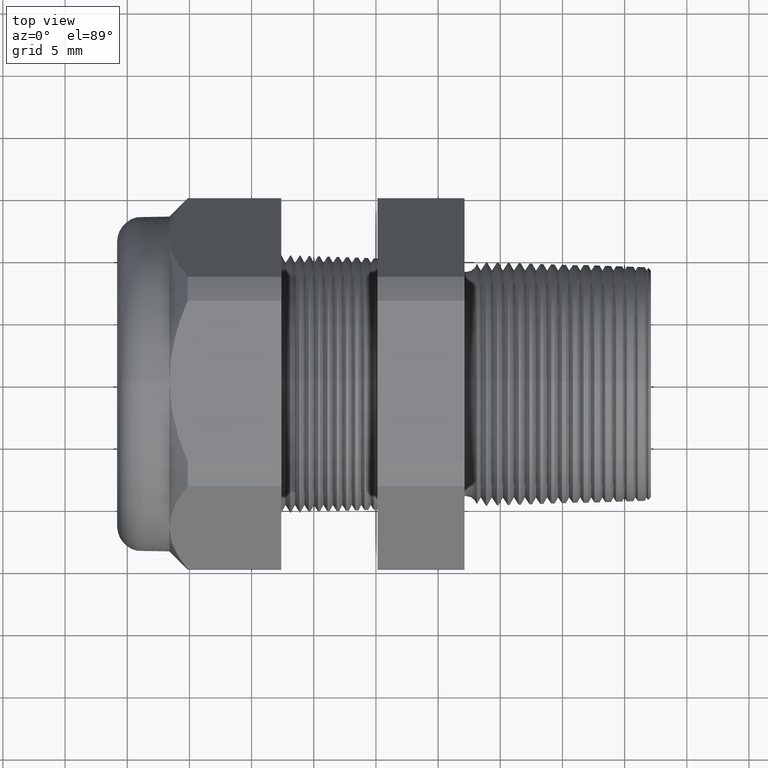
[diagram: clean part render]
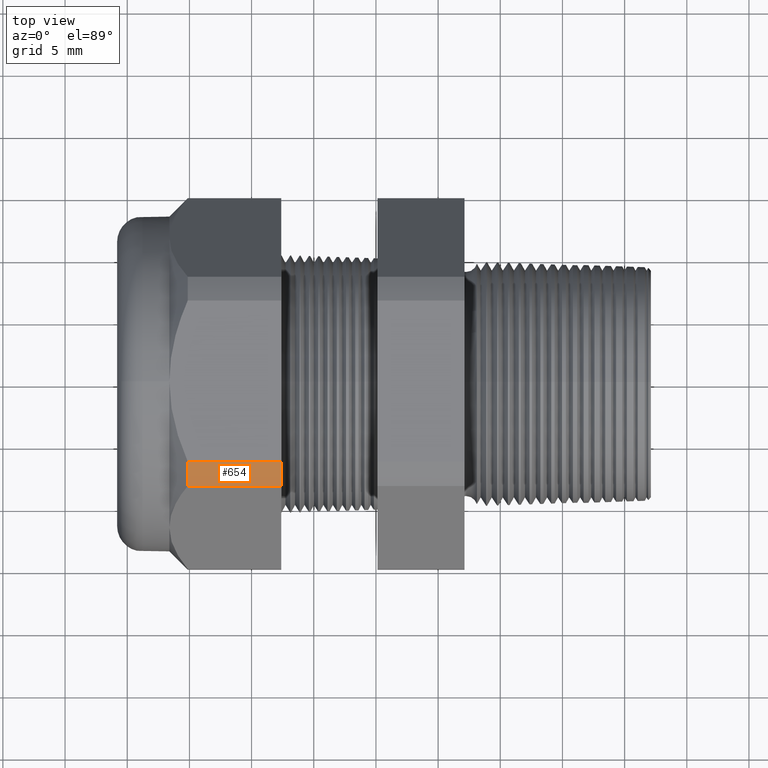
[diagram: same view with one face highlighted and labeled with its STEP entity id]
A machine part, top view. The second image highlights one B-rep face of the part: STEP entity #654.
In plain terms, the highlighted cylindrical surface (partial cylindrical patch) has radius 14.9428 mm, axis along (-1, 0, 0).
Its self-contained STEP definition (entity closure, byte-faithful):
#632 = ORIENTED_EDGE ( 'NONE', *, *, #633, .T. ) ;
#633 = EDGE_CURVE ( 'NONE', #710, #645, #3182, .T. ) ;
#634 = ORIENTED_EDGE ( 'NONE', *, *, #644, .F. ) ;
#635 = ORIENTED_EDGE ( 'NONE', *, *, #636, .F. ) ;
#636 = EDGE_CURVE ( 'NONE', #656, #670, #3170, .T. ) ;
#644 = EDGE_CURVE ( 'NONE', #670, #645, #3210, .T. ) ;
#645 = VERTEX_POINT ( 'NONE', #3206 ) ;
#654 = ADVANCED_FACE ( 'NONE', ( #3240 ), #3239, .T. ) ;
#655 = EDGE_LOOP ( 'NONE', ( #708, #632, #634, #635 ) ) ;
#656 = VERTEX_POINT ( 'NONE', #3234 ) ;
#670 = VERTEX_POINT ( 'NONE', #3273 ) ;
#708 = ORIENTED_EDGE ( 'NONE', *, *, #709, .T. ) ;
#709 = EDGE_CURVE ( 'NONE', #656, #710, #3357, .T. ) ;
#710 = VERTEX_POINT ( 'NONE', #3353 ) ;
#3166 = DIRECTION ( 'NONE',  ( 0.0000000000000000000, 0.0000000000000000000, -1.000000000000000000 ) ) ;
#3167 = DIRECTION ( 'NONE',  ( 1.000000000000000000, 0.0000000000000000000, 0.0000000000000000000 ) ) ;
#3168 = CARTESIAN_POINT ( 'NONE',  ( -0.8903149606299211000, 0.0000000000000000000, 0.0000000000000000000 ) ) ;
#3169 = AXIS2_PLACEMENT_3D ( 'NONE', #3168, #3167, #3166 ) ;
#3170 = CIRCLE ( 'NONE', #3169, 0.5882999999999999300 ) ;
#3171 = DIRECTION ( 'NONE',  ( 0.0000000000000000000, 0.0000000000000000000, -1.000000000000000000 ) ) ;
#3172 = DIRECTION ( 'NONE',  ( 1.000000000000000000, 0.0000000000000000000, 0.0000000000000000000 ) ) ;
#3173 = AXIS2_PLACEMENT_3D ( 'NONE', #3192, #3172, #3171 ) ;
#3182 = CIRCLE ( 'NONE', #3173, 0.5882999999999999300 ) ;
#3192 = CARTESIAN_POINT ( 'NONE',  ( -1.186345669291338800, 0.0000000000000000000, 0.0000000000000000000 ) ) ;
#3206 = CARTESIAN_POINT ( 'NONE',  ( -1.186345669291338800, -0.3313250556190262000, 0.4861281698472627600 ) ) ;
#3207 = DIRECTION ( 'NONE',  ( -1.000000000000000000, 0.0000000000000000000, 0.0000000000000000000 ) ) ;
#3208 = VECTOR ( 'NONE', #3207, 39.37007874015748100 ) ;
#3209 = CARTESIAN_POINT ( 'NONE',  ( 0.2800000000000000300, -0.3313250556190262000, 0.4861281698472627600 ) ) ;
#3210 = LINE ( 'NONE', #3209, #3208 ) ;
#3234 = CARTESIAN_POINT ( 'NONE',  ( -0.8903149606299211000, -0.2553368167734533200, 0.5299999999999999200 ) ) ;
#3235 = DIRECTION ( 'NONE',  ( 0.0000000000000000000, 0.0000000000000000000, 1.000000000000000000 ) ) ;
#3236 = DIRECTION ( 'NONE',  ( -1.000000000000000000, 0.0000000000000000000, 0.0000000000000000000 ) ) ;
#3237 = CARTESIAN_POINT ( 'NONE',  ( 0.2800000000000000300, 0.0000000000000000000, 0.0000000000000000000 ) ) ;
#3238 = AXIS2_PLACEMENT_3D ( 'NONE', #3237, #3236, #3235 ) ;
#3239 = CYLINDRICAL_SURFACE ( 'NONE', #3238, 0.5882999999999999300 ) ;
#3240 = FACE_OUTER_BOUND ( 'NONE', #655, .T. ) ;
#3273 = CARTESIAN_POINT ( 'NONE',  ( -0.8903149606299211000, -0.3313250556190262000, 0.4861281698472627600 ) ) ;
#3353 = CARTESIAN_POINT ( 'NONE',  ( -1.186345669291338600, -0.2553368167734532700, 0.5300000000000001400 ) ) ;
#3354 = DIRECTION ( 'NONE',  ( -1.000000000000000000, 0.0000000000000000000, 0.0000000000000000000 ) ) ;
#3355 = VECTOR ( 'NONE', #3354, 39.37007874015748100 ) ;
#3356 = CARTESIAN_POINT ( 'NONE',  ( 0.2800000000000000300, -0.2553368167734533200, 0.5299999999999999200 ) ) ;
#3357 = LINE ( 'NONE', #3356, #3355 ) ;